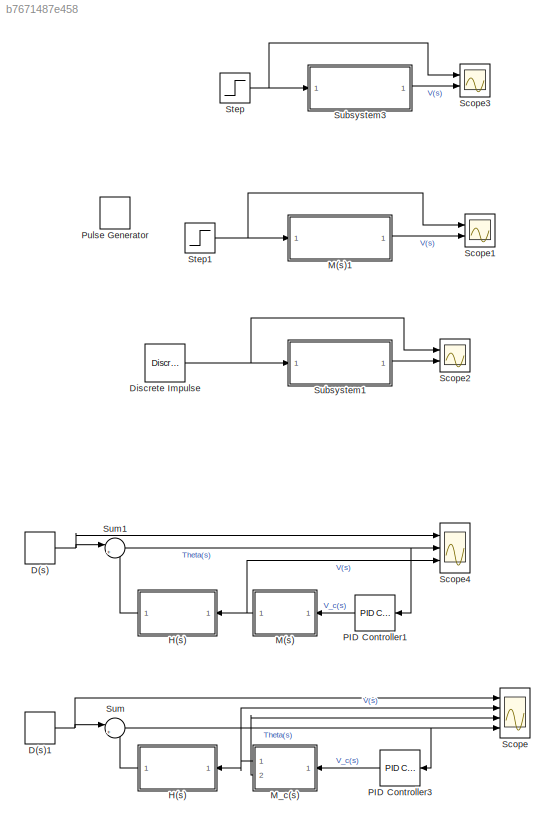
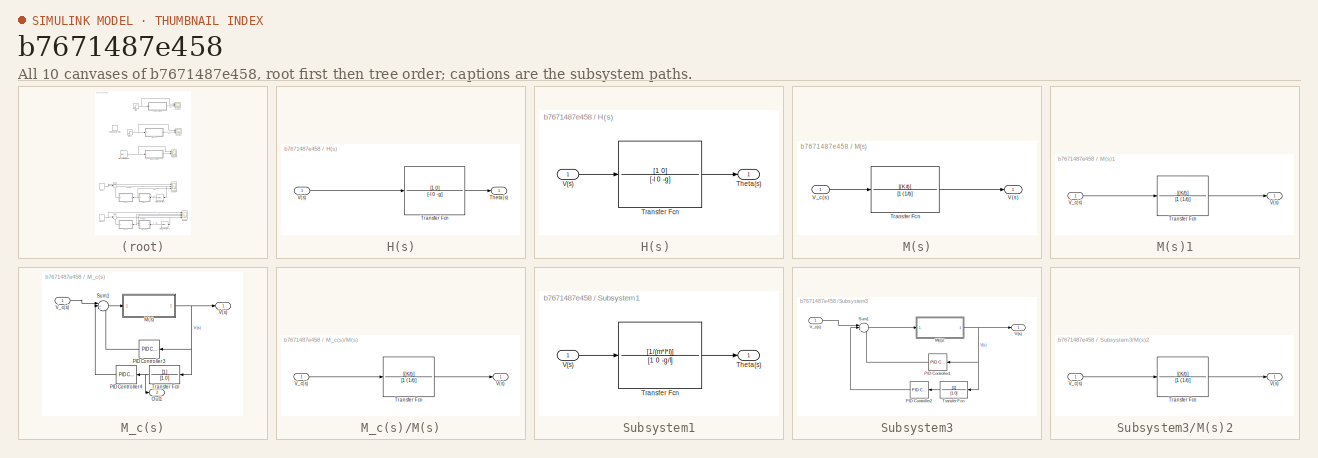
[diagram: thumbnail index - all 10 canvases of the model, root first then tree order]
MODEL slx_b7671487e458
KIND model
CONFIG AbsTol = auto
CONFIG EnableMultiTasking = off
CONFIG FixedStep = auto
CONFIG MaxStep = auto
CONFIG MinStep = auto
CONFIG RelTol = 1e-3
CONFIG SampleTimeConstraint = Unconstrained
CONFIG SolverName = VariableStepAuto
CONFIG StartTime = 0.0
CONFIG StopTime = 10
BLOCK [DiscretePulseGenerator] D(s)
  Amplitude = 0.1
  Period = 10
  PhaseDelay = 1
  Ports = [0, 1]
  PulseType = Time based
BLOCK [DiscretePulseGenerator] D(s)1
  Amplitude = 0.1
  Period = 10
  PhaseDelay = 1
  Ports = [0, 1]
  PulseType = Time based
BLOCK [Reference] Discrete Impulse  REF=dspsrcs4/Discrete 
Impulse
  Ports = [0, 1]
  SourceBlock = dspsrcs4/Discrete \nImpulse
  SourceProductBaseCode = DS
  SourceType = Discrete Impulse
BLOCK [SubSystem] H(s)
  Ports = [1, 1]
  RequestExecContextInheritance = off
BLOCK [SubSystem] H(s) 
  Ports = [1, 1]
  RequestExecContextInheritance = off
BLOCK [Outport] H(s) /Theta(s)
BLOCK [TransferFcn] H(s) /Transfer Fcn
  Denominator = [-l 0 -g]
  Numerator = [1 0]
BLOCK [Inport] H(s) /V(s)
BLOCK [Outport] H(s)/Theta(s)
BLOCK [TransferFcn] H(s)/Transfer Fcn
  Denominator = [-l 0 -g]
  Numerator = [1 0]
BLOCK [Inport] H(s)/V(s)
BLOCK [SubSystem] M(s)
  Ports = [1, 1]
  RequestExecContextInheritance = off
BLOCK [TransferFcn] M(s)/Transfer Fcn
  Denominator = [1 (1/t)]
  Numerator = [(K/t)]
BLOCK [Outport] M(s)/V(s)
BLOCK [Inport] M(s)/V_c(s)
BLOCK [SubSystem] M(s)1
  Ports = [1, 1]
  RequestExecContextInheritance = off
BLOCK [TransferFcn] M(s)1/Transfer Fcn
  Denominator = [1 (1/t)]
  Numerator = [(K/t)]
BLOCK [Outport] M(s)1/V(s)
BLOCK [Inport] M(s)1/V_c(s)
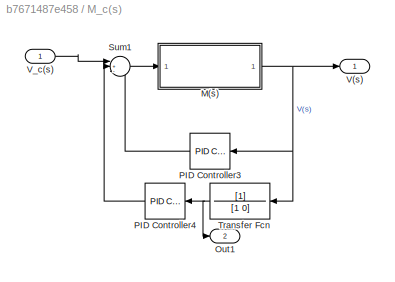
BLOCK [SubSystem] M_c(s)
  Ports = [1, 2]
  RequestExecContextInheritance = off
BLOCK [SubSystem] M_c(s)/M(s)
  Ports = [1, 1]
  RequestExecContextInheritance = off
BLOCK [TransferFcn] M_c(s)/M(s)/Transfer Fcn
  Denominator = [1 (1/t)]
  Numerator = [(K/t)]
BLOCK [Outport] M_c(s)/M(s)/V(s)
BLOCK [Inport] M_c(s)/M(s)/V_c(s)
BLOCK [Outport] M_c(s)/Out1
  Port = 2
BLOCK [Reference] M_c(s)/PID Controller3  REF=slpidlib/PID Controller
  Ports = [1, 1]
  SourceBlock = slpidlib/PID Controller
  SourceProductBaseCode = SL
  SourceType = PID 1dof
BLOCK [Reference] M_c(s)/PID Controller4  REF=slpidlib/PID Controller
  Ports = [1, 1]
  SourceBlock = slpidlib/PID Controller
  SourceProductBaseCode = SL
  SourceType = PID 1dof
BLOCK [Sum] M_c(s)/Sum1
  Inputs = |+--
  Ports = [3, 1]
BLOCK [TransferFcn] M_c(s)/Transfer Fcn
  Denominator = [1 0]
BLOCK [Outport] M_c(s)/V(s)
BLOCK [Inport] M_c(s)/V_c(s)
BLOCK [Reference] PID Controller1  REF=slpidlib/PID Controller
  Ports = [1, 1]
  SourceBlock = slpidlib/PID Controller
  SourceProductBaseCode = SL
  SourceType = PID 1dof
BLOCK [Reference] PID Controller3  REF=slpidlib/PID Controller
  Ports = [1, 1]
  SourceBlock = slpidlib/PID Controller
  SourceProductBaseCode = SL
  SourceType = PID 1dof
BLOCK [DiscretePulseGenerator] Pulse Generator
  Amplitude = 0.01
  Period = 20
  PhaseDelay = 2
  Ports = [0, 1]
  PulseType = Time based
BLOCK [Scope] Scope
  Floating = off
  NumInputPorts = 4
  Ports = [4]
  ScopeSpecificationString = Simulink.scopes.TimeScopeBlockCfg('CurrentConfiguration', extmgr.ConfigurationSet(extmgr.Configuration('Core','General UI',true),extmgr.Configuration('Core','Source UI',true),extmgr.Configuration('Sources','WiredSimulink',true),extmgr.Configuration('Visuals','Time Domain',true,'SerializedDisplays',{struct('MinYLimReal','-0.89403','MaxYLimReal','0.87024','YLabelReal','','MinYLimMag','0.00000','MaxY...<+1402ch>
BLOCK [Scope] Scope1
  Floating = off
  NumInputPorts = 2
  Ports = [2]
  ScopeSpecificationString = Simulink.scopes.TimeScopeBlockCfg('CurrentConfiguration', extmgr.ConfigurationSet(extmgr.Configuration('Core','General UI',true),extmgr.Configuration('Core','Source UI',true),extmgr.Configuration('Sources','WiredSimulink',true,'DataLoggingVariableName','ScopeData1'),extmgr.Configuration('Visuals','Time Domain',true,'SerializedDisplays',{struct('MinYLimReal','-37.5','MaxYLimReal','337.5','YLabelRea...<+1386ch>
BLOCK [Scope] Scope2
  Floating = off
  NumInputPorts = 2
  Ports = [2]
  ScopeSpecificationString = Simulink.scopes.TimeScopeBlockCfg('CurrentConfiguration', extmgr.ConfigurationSet(extmgr.Configuration('Core','General UI',true),extmgr.Configuration('Core','Source UI',true),extmgr.Configuration('Sources','WiredSimulink',true,'DataLoggingVariableName','ScopeData1'),extmgr.Configuration('Visuals','Time Domain',true,'SerializedDisplays',{struct('MinYLimReal','-0.82203','MaxYLimReal','1.20245','YLab...<+1418ch>
BLOCK [Scope] Scope3
  Floating = off
  NumInputPorts = 2
  Ports = [2]
  ScopeSpecificationString = Simulink.scopes.TimeScopeBlockCfg('CurrentConfiguration', extmgr.ConfigurationSet(extmgr.Configuration('Core','General UI',true),extmgr.Configuration('Core','Source UI',true),extmgr.Configuration('Sources','WiredSimulink',true,'DataLoggingVariableName','ScopeData1'),extmgr.Configuration('Visuals','Time Domain',true,'SerializedDisplays',{struct('MinYLimReal','-0.125','MaxYLimReal','1.125','YLabelRe...<+1389ch>
BLOCK [Scope] Scope4
  Floating = off
  NumInputPorts = 3
  Ports = [3]
  ScopeSpecificationString = Simulink.scopes.TimeScopeBlockCfg('CurrentConfiguration', extmgr.ConfigurationSet(extmgr.Configuration('Core','General UI',true),extmgr.Configuration('Core','Source UI',true),extmgr.Configuration('Sources','WiredSimulink',true,'DataLoggingVariableName','ScopeData1'),extmgr.Configuration('Visuals','Time Domain',true,'SerializedDisplays',{struct('MinYLimReal','-1.00922','MaxYLimReal','0.91481','YLab...<+1456ch>
BLOCK [Step] Step
  SampleTime = 0
BLOCK [Step] Step1
  After = 300
  SampleTime = 0
  Time = 0.01
BLOCK [SubSystem] Subsystem1
  Ports = [1, 1]
  RequestExecContextInheritance = off
BLOCK [Outport] Subsystem1/Theta(s)
BLOCK [TransferFcn] Subsystem1/Transfer Fcn
  Denominator = [1 0 -g/l]
  Numerator = [1/(m*l*l)]
BLOCK [Inport] Subsystem1/V(s)
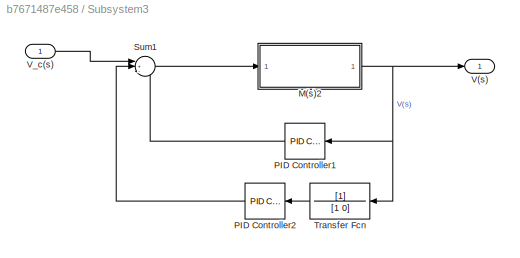
BLOCK [SubSystem] Subsystem3
  Ports = [1, 1]
  RequestExecContextInheritance = off
BLOCK [SubSystem] Subsystem3/M(s)2
  Ports = [1, 1]
  RequestExecContextInheritance = off
BLOCK [TransferFcn] Subsystem3/M(s)2/Transfer Fcn
  Denominator = [1 (1/t)]
  Numerator = [(K/t)]
BLOCK [Outport] Subsystem3/M(s)2/V(s)
BLOCK [Inport] Subsystem3/M(s)2/V_c(s)
BLOCK [Reference] Subsystem3/PID Controller1  REF=slpidlib/PID Controller
  Ports = [1, 1]
  SourceBlock = slpidlib/PID Controller
  SourceProductBaseCode = SL
  SourceType = PID 1dof
BLOCK [Reference] Subsystem3/PID Controller2  REF=slpidlib/PID Controller
  Ports = [1, 1]
  SourceBlock = slpidlib/PID Controller
  SourceProductBaseCode = SL
  SourceType = PID 1dof
BLOCK [Sum] Subsystem3/Sum1
  Inputs = |+--
  Ports = [3, 1]
BLOCK [TransferFcn] Subsystem3/Transfer Fcn
  Denominator = [1 0]
BLOCK [Outport] Subsystem3/V(s)
BLOCK [Inport] Subsystem3/V_c(s)
BLOCK [Sum] Sum
  Inputs = |++
  Ports = [2, 1]
BLOCK [Sum] Sum1
  Inputs = |++
  Ports = [2, 1]
NET D(s)1:1 -> Scope:1, Sum:1
NET D(s):1 -> Scope4:1, Sum1:1
NET Discrete Impulse:1 -> Scope2:1, Subsystem1:1
LINE H(s) /Transfer Fcn:1 -> H(s) /Theta(s):1
LINE H(s) /V(s):1 -> H(s) /Transfer Fcn:1
LINE H(s) :1 -> Sum:2
LINE H(s)/Transfer Fcn:1 -> H(s)/Theta(s):1
LINE H(s)/V(s):1 -> H(s)/Transfer Fcn:1
LINE H(s):1 -> Sum1:2
LINE M(s)/Transfer Fcn:1 -> M(s)/V(s):1
LINE M(s)/V_c(s):1 -> M(s)/Transfer Fcn:1
LINE M(s)1/Transfer Fcn:1 -> M(s)1/V(s):1
LINE M(s)1/V_c(s):1 -> M(s)1/Transfer Fcn:1
LINE M(s)1:1 -> Scope1:2
NET M(s):1 -> H(s):1, Scope4:3
LINE M_c(s)/M(s)/Transfer Fcn:1 -> M_c(s)/M(s)/V(s):1
LINE M_c(s)/M(s)/V_c(s):1 -> M_c(s)/M(s)/Transfer Fcn:1
NET M_c(s)/M(s):1 -> M_c(s)/PID Controller3:1, M_c(s)/Transfer Fcn:1, M_c(s)/V(s):1
LINE M_c(s)/PID Controller3:1 -> M_c(s)/Sum1:3
LINE M_c(s)/PID Controller4:1 -> M_c(s)/Sum1:2
LINE M_c(s)/Sum1:1 -> M_c(s)/M(s):1
NET M_c(s)/Transfer Fcn:1 -> M_c(s)/Out1:1, M_c(s)/PID Controller4:1
LINE M_c(s)/V_c(s):1 -> M_c(s)/Sum1:1
NET M_c(s):1 -> H(s) :1, Scope:2
LINE M_c(s):2 -> Scope:3
LINE PID Controller1:1 -> M(s):1
LINE PID Controller3:1 -> M_c(s):1
NET Step1:1 -> M(s)1:1, Scope1:1
NET Step:1 -> Scope3:1, Subsystem3:1
LINE Subsystem1/Transfer Fcn:1 -> Subsystem1/Theta(s):1
LINE Subsystem1/V(s):1 -> Subsystem1/Transfer Fcn:1
LINE Subsystem1:1 -> Scope2:2
LINE Subsystem3/M(s)2/Transfer Fcn:1 -> Subsystem3/M(s)2/V(s):1
LINE Subsystem3/M(s)2/V_c(s):1 -> Subsystem3/M(s)2/Transfer Fcn:1
NET Subsystem3/M(s)2:1 -> Subsystem3/PID Controller1:1, Subsystem3/Transfer Fcn:1, Subsystem3/V(s):1
LINE Subsystem3/PID Controller1:1 -> Subsystem3/Sum1:3
LINE Subsystem3/PID Controller2:1 -> Subsystem3/Sum1:2
LINE Subsystem3/Sum1:1 -> Subsystem3/M(s)2:1
LINE Subsystem3/Transfer Fcn:1 -> Subsystem3/PID Controller2:1
LINE Subsystem3/V_c(s):1 -> Subsystem3/Sum1:1
LINE Subsystem3:1 -> Scope3:2
NET Sum1:1 -> PID Controller1:1, Scope4:2
NET Sum:1 -> PID Controller3:1, Scope:4
note: NET lines group one-source signal fan-out (src -> all destinations, sorted); 1:1 wires keep LINE
